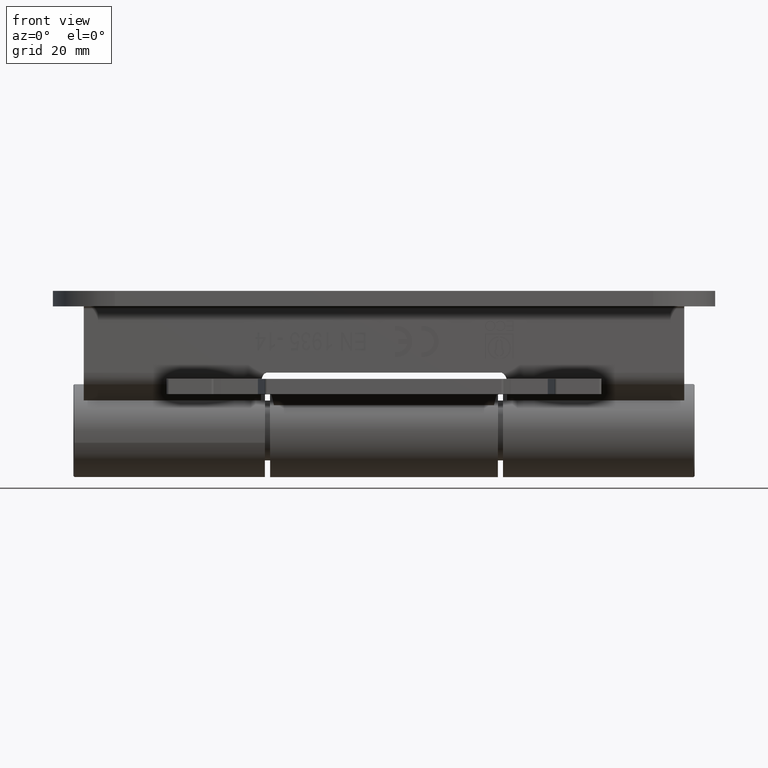
[diagram: clean part render]
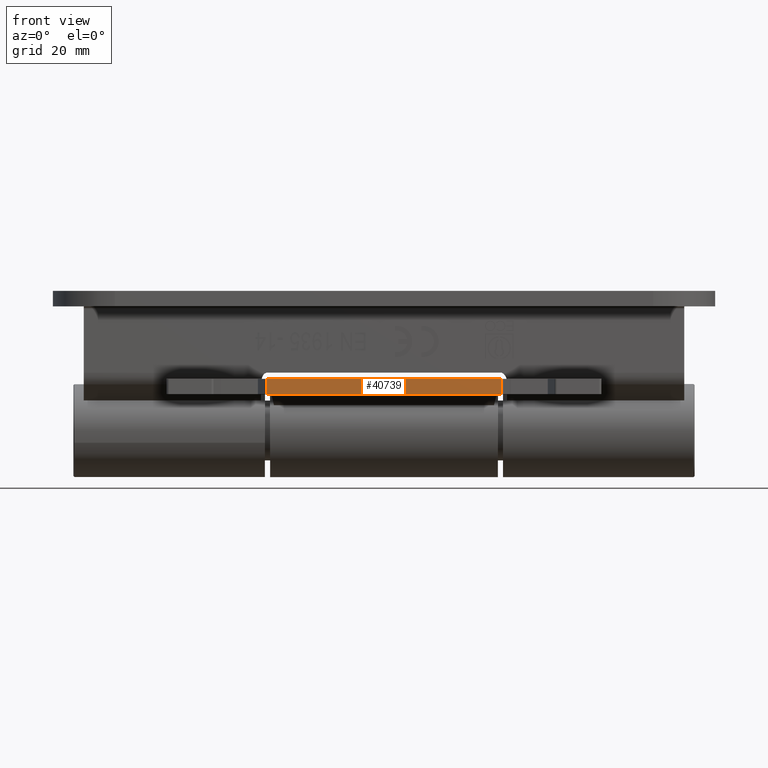
[diagram: same view with one face highlighted and labeled with its STEP entity id]
A machine part, front view. The second image highlights one B-rep face of the part: STEP entity #40739.
In plain terms, the highlighted planar face has unit normal (-0, -1, -0).
Its self-contained STEP definition (entity closure, byte-faithful):
#2066 = VECTOR ( 'NONE', #27015, 1000.000000000000000 ) ;
#2912 = PLANE ( 'NONE',  #30261 ) ;
#3002 = VERTEX_POINT ( 'NONE', #18123 ) ;
#3872 = DIRECTION ( 'NONE',  ( -0.000000000000000000, -1.000000000000000000, -1.505427877148019486E-17 ) ) ;
#4562 = EDGE_CURVE ( 'NONE', #9857, #3002, #5324, .T. ) ;
#5324 = LINE ( 'NONE', #5790, #6750 ) ;
#5790 = CARTESIAN_POINT ( 'NONE',  ( -39.00000000000000000, -7.000000000000000000, 22.60961179679780386 ) ) ;
#5804 = EDGE_CURVE ( 'NONE', #27378, #18059, #29749, .T. ) ;
#6750 = VECTOR ( 'NONE', #42377, 1000.000000000000000 ) ;
#9751 = FACE_OUTER_BOUND ( 'NONE', #15367, .T. ) ;
#9857 = VERTEX_POINT ( 'NONE', #19043 ) ;
#10495 = CARTESIAN_POINT ( 'NONE',  ( -39.00000000000000000, -7.000000000000000000, 42.00000000000000000 ) ) ;
#11298 = EDGE_CURVE ( 'NONE', #3002, #27378, #29266, .T. ) ;
#12125 = CARTESIAN_POINT ( 'NONE',  ( -39.00000000000000000, -10.00000000000000000, 42.00000000000000000 ) ) ;
#12606 = LINE ( 'NONE', #12125, #2066 ) ;
#15367 = EDGE_LOOP ( 'NONE', ( #30195, #23061, #43787, #18857 ) ) ;
#17806 = DIRECTION ( 'NONE',  ( -1.000000000000000000, 0.000000000000000000, 1.026341648675405711E-48 ) ) ;
#18059 = VERTEX_POINT ( 'NONE', #20033 ) ;
#18123 = CARTESIAN_POINT ( 'NONE',  ( -39.00000000000000000, -7.000000000000000000, 22.60961179679781097 ) ) ;
#18857 = ORIENTED_EDGE ( 'NONE', *, *, #11298, .T. ) ;
#19043 = CARTESIAN_POINT ( 'NONE',  ( -39.00000000000000000, -10.00000000000000000, 22.60961179679781097 ) ) ;
#20033 = CARTESIAN_POINT ( 'NONE',  ( -39.00000000000000000, -10.00000000000000000, -22.60961179679774702 ) ) ;
#20042 = CARTESIAN_POINT ( 'NONE',  ( -39.00000000000000000, -7.000000000000000000, -22.60961179679774702 ) ) ;
#21225 = DIRECTION ( 'NONE',  ( -1.026341648675405863E-48, 0.000000000000000000, -1.000000000000000000 ) ) ;
#23061 = ORIENTED_EDGE ( 'NONE', *, *, #29380, .F. ) ;
#27015 = DIRECTION ( 'NONE',  ( -1.026341648675405863E-48, 0.000000000000000000, -1.000000000000000000 ) ) ;
#27378 = VERTEX_POINT ( 'NONE', #20042 ) ;
#28053 = CARTESIAN_POINT ( 'NONE',  ( -39.00000000000000000, -10.00000000000000000, 42.00000000000000000 ) ) ;
#29266 = LINE ( 'NONE', #10495, #34542 ) ;
#29380 = EDGE_CURVE ( 'NONE', #9857, #18059, #12606, .T. ) ;
#29749 = LINE ( 'NONE', #40708, #47335 ) ;
#30195 = ORIENTED_EDGE ( 'NONE', *, *, #5804, .T. ) ;
#30261 = AXIS2_PLACEMENT_3D ( 'NONE', #28053, #17806, #35378 ) ;
#34542 = VECTOR ( 'NONE', #21225, 1000.000000000000000 ) ;
#35378 = DIRECTION ( 'NONE',  ( 1.026341648675405711E-48, 0.000000000000000000, 1.000000000000000000 ) ) ;
#40708 = CARTESIAN_POINT ( 'NONE',  ( -39.00000000000000000, -9.999999999999998224, -22.60961179679777544 ) ) ;
#40739 = ADVANCED_FACE ( 'NONE', ( #9751 ), #2912, .T. ) ;
#42377 = DIRECTION ( 'NONE',  ( 0.000000000000000000, 1.000000000000000000, 0.000000000000000000 ) ) ;
#43787 = ORIENTED_EDGE ( 'NONE', *, *, #4562, .T. ) ;
#47335 = VECTOR ( 'NONE', #3872, 1000.000000000000000 ) ;